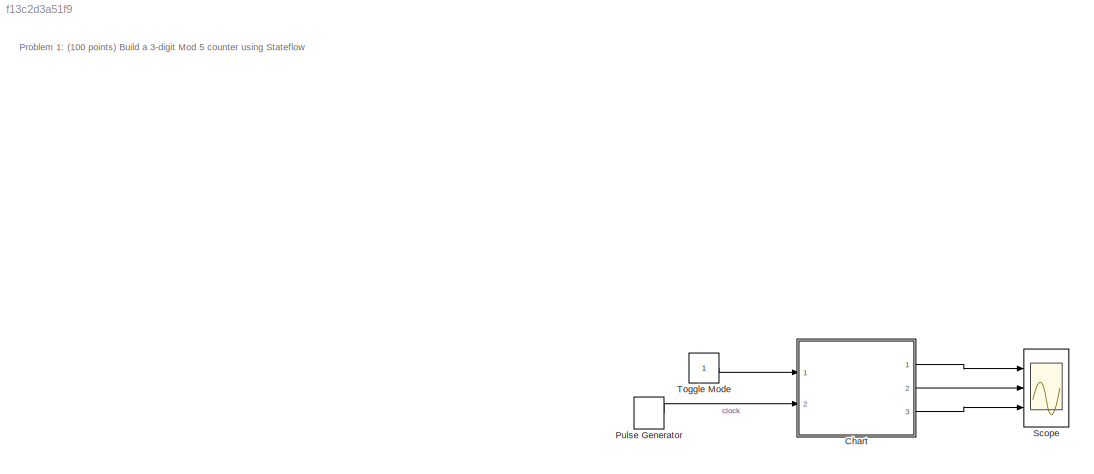
MODEL slx_f13c2d3a51f9
KIND model
CONFIG AbsTol = auto
CONFIG EnableMultiTasking = off
CONFIG FixedStep = auto
CONFIG MaxStep = auto
CONFIG MinStep = auto
CONFIG RelTol = 1e-3
CONFIG SampleTimeConstraint = Unconstrained
CONFIG Solver = VariableStepAuto
CONFIG SolverName = VariableStepAuto
CONFIG StartTime = 0.0
CONFIG StopTime = inf
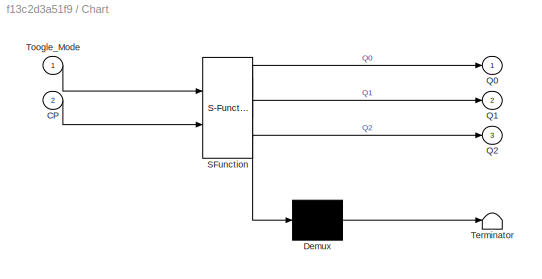
BLOCK [SubSystem] Chart
  ErrorFcn = Stateflow.Translate.translate
  PermitHierarchicalResolution = ExplicitOnly
  Ports = [2, 3]
  RequestExecContextInheritance = off
  SFBlockType = Chart
  TreatAsAtomicUnit = on
BLOCK [Demux] Chart/ Demux 
  Outputs = 1
  Ports = [1, 1]
BLOCK [S-Function] Chart/ SFunction 
  EnableBusSupport = on
  FunctionName = sf_sfun
  PortCounts = [2 4]
  Ports = [2, 4]
  SFcnIsStateOwnerBlock = off
  SFunctionDeploymentMode = off
  Tag = Stateflow S-Function 3
BLOCK [Terminator] Chart/ Terminator 
BLOCK [Inport] Chart/CP
  Port = 2
BLOCK [Outport] Chart/Q0
BLOCK [Outport] Chart/Q1
  Port = 2
BLOCK [Outport] Chart/Q2
  Port = 3
BLOCK [Inport] Chart/Toogle_Mode
BLOCK [DiscretePulseGenerator] Pulse Generator
  Period = 10
  Ports = [0, 1]
  PulseType = Time based
  PulseWidth = 5
BLOCK [Scope] Scope
  Floating = off
  NumInputPorts = 3
  Ports = [3]
  ScopeSpecificationString = Simulink.scopes.TimeScopeBlockCfg('CurrentConfiguration', extmgr.ConfigurationSet(extmgr.Configuration('Core','General UI',true),extmgr.Configuration('Core','Source UI',true),extmgr.Configuration('Sources','WiredSimulink',true),extmgr.Configuration('Visuals','Time Domain',true,'SerializedDisplays',{struct('MinYLimReal','0.9','MaxYLimReal','1.1','YLabelReal','','MinYLimMag','0.9','MaxYLimMag','1.1'...<+2586ch>
BLOCK [Constant] Toggle Mode
ANNOTATION (root): Problem 1: (100 points) Build a 3-digit Mod 5 counter using Stateflow
LINE Chart:1 -> Scope:1
LINE Chart:2 -> Scope:2
LINE Chart:3 -> Scope:3
LINE Pulse Generator:1 -> Chart:2
LINE Toggle Mode:1 -> Chart:1
CHART Chart states=4 transitions=35
  STATE_LABEL 'Init\nentry:\nQ0 = 0;\nQ1 = 0;\nQ2 = 0;'
  STATE_LABEL 'FF2\nentry:\nJ2 = Toogle_Mode;\nK2 = Toogle_Mode;\nexit:\nflag = 1;\nduring:\n'
  STATE_LABEL '% Toggling Q2'
  STATE_LABEL '[J2 == 1 && K2 == 1 && Q2 == 0 && Q1 == 1]'
  STATE_LABEL '{Q2 = 1;}'
  STATE_LABEL '[J2 == 1 && K2 == 1 && Q2 == 1 && Q1 == 1]'
  STATE_LABEL '{Q2 = 0;}'
  STATE_LABEL 'FF1\nentry:\nJ1 = Toogle_Mode;\nK1 = Toogle_Mode;\nduring:\n'
  STATE_LABEL '% Toggling Q1'
  STATE_LABEL '[J1 == 1 && K1 == 1 && Q1 == 0 && Q0 == 1]'
  STATE_LABEL '{Q1 = 1;}'
  STATE_LABEL '[J1 == 1 && K1 == 1 && Q1 == 1 && Q0]'
  STATE_LABEL '{Q1 = 0;}'
  STATE_LABEL 'FF0\nentry:\nJ0 = Toogle_Mode;\nK0 = Toogle_Mode;\nclk = CP;\nflag = 0;\nduring:\n'
  STATE_LABEL '% Toggling Q0'
  STATE_LABEL '[J0 == 1 &&  K0 == 1 && Q0 == 0 && clk == 1 ]'
  STATE_LABEL '{Q0 = 1;}'
  STATE_LABEL '[J0 == 1 &&  K0 == 1 && Q0 == 1 && clk == 1]'
  STATE_LABEL '{Q0 = 0;}'
  STATE_LABEL '[Q1 ~= 0]'
  STATE_LABEL '[Q0 ~= 0]'
  STATE_LABEL '[flag == 1]'
  STATE_LABEL 'FF2\nentry:\nJ2 = Toogle_Mode;\nK2 = Toogle_Mode;\nexit:\nflag = 1;\nduring:\n'
  STATE_LABEL '% Toggling Q2'
  STATE_LABEL '[J2 == 1 && K2 == 1 && Q2 == 0 && Q1 == 1]'
  STATE_LABEL '{Q2 = 1;}'
  STATE_LABEL '[J2 == 1 && K2 == 1 && Q2 == 1 && Q1 == 1]'
  STATE_LABEL '{Q2 = 0;}'
  STATE_LABEL 'FF1\nentry:\nJ1 = Toogle_Mode;\nK1 = Toogle_Mode;\nduring:\n'
  STATE_LABEL '% Toggling Q1'
  STATE_LABEL '[J1 == 1 && K1 == 1 && Q1 == 0 && Q0 == 1]'
  STATE_LABEL '{Q1 = 1;}'
  STATE_LABEL '[J1 == 1 && K1 == 1 && Q1 == 1 && Q0]'
  STATE_LABEL '{Q1 = 0;}'
  STATE_LABEL 'FF0\nentry:\nJ0 = Toogle_Mode;\nK0 = Toogle_Mode;\nclk = CP;\nflag = 0;\nduring:\n'
  STATE_LABEL '% Toggling Q0'
  STATE_LABEL '[J0 == 1 &&  K0 == 1 && Q0 == 0 && clk == 1 ]'
  STATE_LABEL '{Q0 = 1;}'
  STATE_LABEL '[J0 == 1 &&  K0 == 1 && Q0 == 1 && clk == 1]'
  STATE_LABEL '{Q0 = 0;}'
CHART  states=0 transitions=0
